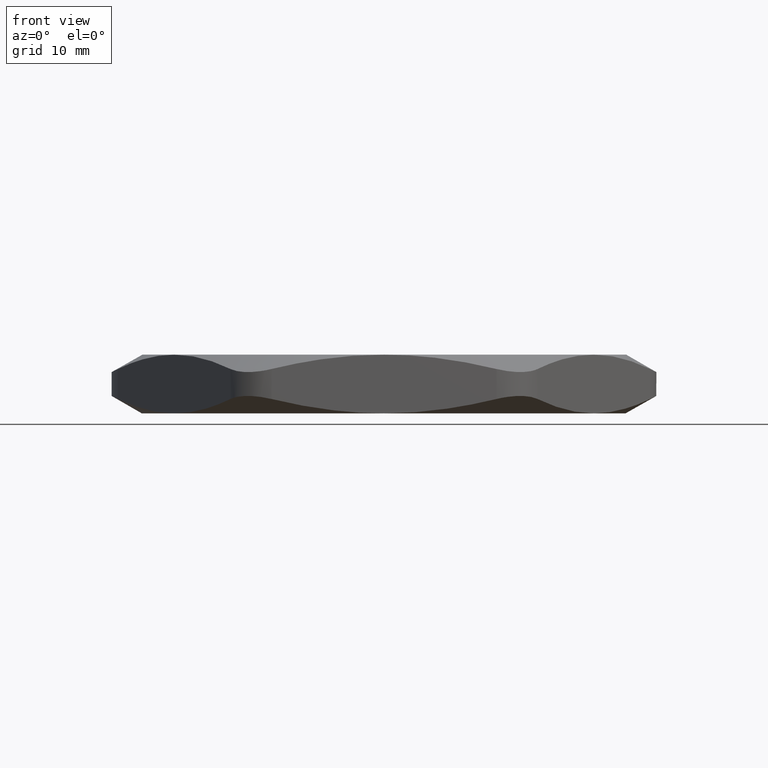
[diagram: clean part render]
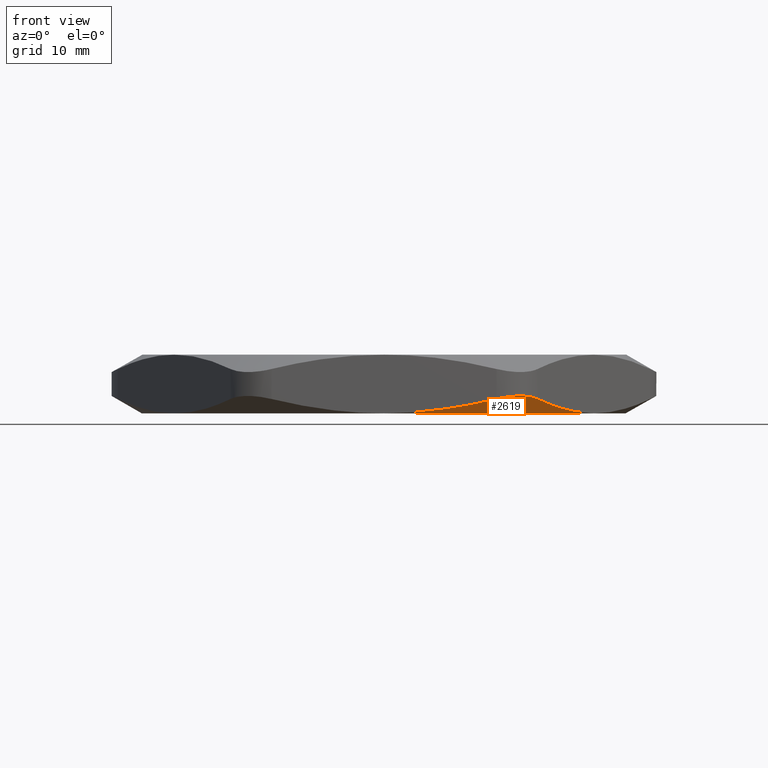
[diagram: same view with one face highlighted and labeled with its STEP entity id]
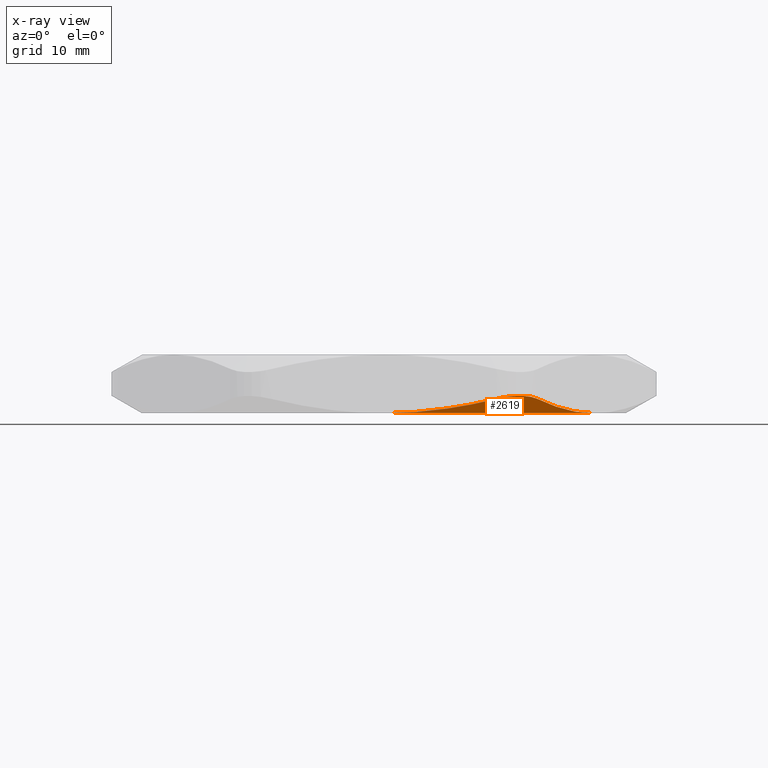
[diagram: x-ray of the same camera — body ghosted, the highlighted face saturated]
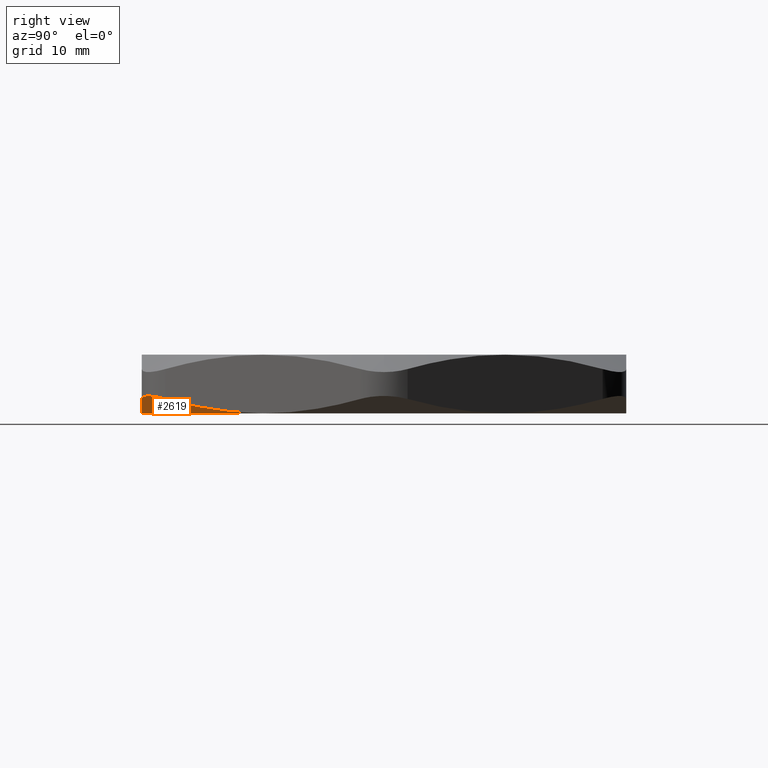
[diagram: same view with one face highlighted and labeled with its STEP entity id]
A machine part, front view. The second image highlights one B-rep face of the part: STEP entity #2619.
The next image is the same camera in x-ray: the body ghosted, the highlighted face saturated — about 0% of this face is hidden behind the body in this view.
A second angle (right view) of the same face is appended — the face is thin or edge-on in the first view.
In plain terms, the highlighted conical surface has half-angle 60 deg.
Its self-contained STEP definition (entity closure, byte-faithful):
#328 = CARTESIAN_POINT ( 'NONE',  ( 0.5946707772653144800, -1.279999999999999800, 0.07586042469470369300 ) ) ;
#366 = DIRECTION ( 'NONE',  ( -1.000000000000000000, 0.0000000000000000000, 0.0000000000000000000 ) ) ;
#367 = DIRECTION ( 'NONE',  ( 0.0000000000000000000, 0.0000000000000000000, -1.000000000000000000 ) ) ;
#368 = CARTESIAN_POINT ( 'NONE',  ( 0.0000000000000000000, 0.0000000000000000000, 0.0000000000000000000 ) ) ;
#369 = AXIS2_PLACEMENT_3D ( 'NONE', #368, #367, #366 ) ;
#374 = CIRCLE ( 'NONE', #369, 1.279999999999999800 ) ;
#397 = B_SPLINE_CURVE_WITH_KNOTS ( 'NONE', 3,
 ( #451, #450, #449, #448, #447, #446, #445, #444, #443, #442 ),
 .UNSPECIFIED., .F., .F.,
 ( 4, 2, 2, 2, 4 ),
 ( 0.01899322437989307100, 0.02088828638684811800, 0.02278334839380316600, 0.02657347240771327000, 0.03415372043553347600 ),
 .UNSPECIFIED. ) ;
#442 = CARTESIAN_POINT ( 'NONE',  ( 0.8111771282114240700, -1.154999999999999800, 0.07586042469470390100 ) ) ;
#443 = CARTESIAN_POINT ( 'NONE',  ( 0.8598356275105356600, -1.070721006993884000, 0.05218725694841351600 ) ) ;
#444 = CARTESIAN_POINT ( 'NONE',  ( 0.9088750550365841700, -0.9857822269446767600, 0.03311349661659964600 ) ) ;
#445 = CARTESIAN_POINT ( 'NONE',  ( 0.9831811724473175100, -0.8570802562761070700, 0.01352200269154271400 ) ) ;
#446 = CARTESIAN_POINT ( 'NONE',  ( 1.008074325343679200, -0.8139640506990290000, 0.008494105051138064300 ) ) ;
#447 = CARTESIAN_POINT ( 'NONE',  ( 1.045618532124231500, -0.7489355770252401600, 0.003421162097211205400 ) ) ;
#448 = CARTESIAN_POINT ( 'NONE',  ( 1.058167297624364300, -0.7272004776067422200, 0.002141065351997875000 ) ) ;
#449 = CARTESIAN_POINT ( 'NONE',  ( 1.083335101972366700, -0.6836085617610497800, 0.0004293670209238089100 ) ) ;
#450 = CARTESIAN_POINT ( 'NONE',  ( 1.095950099761045600, -0.6617587446536880000, -1.544667957355080600E-016 ) ) ;
#451 = CARTESIAN_POINT ( 'NONE',  ( 1.108512516844081500, -0.6400000000000000100, 0.0000000000000000000 ) ) ;
#484 = CARTESIAN_POINT ( 'NONE',  ( 2.365849761790801500E-016, -1.280000000000000000, 0.0000000000000000000 ) ) ;
#485 = CARTESIAN_POINT ( 'NONE',  ( 0.05001037886990379600, -1.279999999999999800, -7.509914162270411100E-017 ) ) ;
#486 = CARTESIAN_POINT ( 'NONE',  ( 0.1001624873266663800, -1.280000000000000000, 0.001697979877627757000 ) ) ;
#487 = CARTESIAN_POINT ( 'NONE',  ( 0.1756024681980051800, -1.279999999999999400, 0.006782620379827525800 ) ) ;
#488 = CARTESIAN_POINT ( 'NONE',  ( 0.2008094994245510600, -1.279999999999999800, 0.008903294908241992900 ) ) ;
#489 = CARTESIAN_POINT ( 'NONE',  ( 0.2509276229445917500, -1.280000000000000000, 0.01393159953771775500 ) ) ;
#490 = CARTESIAN_POINT ( 'NONE',  ( 0.2758819046389016600, -1.279999999999999800, 0.01684114404334761600 ) ) ;
#491 = CARTESIAN_POINT ( 'NONE',  ( 0.4001594715489946200, -1.279999999999999800, 0.03325239944499157300 ) ) ;
#492 = CARTESIAN_POINT ( 'NONE',  ( 0.4980012205278627200, -1.280000000000000200, 0.05234475255551986100 ) ) ;
#493 = CARTESIAN_POINT ( 'NONE',  ( 0.5946707772653144800, -1.279999999999999800, 0.07586042469470369300 ) ) ;
#496 = B_SPLINE_CURVE_WITH_KNOTS ( 'NONE', 3,
 ( #493, #492, #491, #490, #489, #488, #487, #486, #485, #484 ),
 .UNSPECIFIED., .F., .F.,
 ( 4, 2, 2, 2, 4 ),
 ( 0.08865235764301276900, 0.09625948038925936900, 0.09816126107582101600, 0.1000630417623826600, 0.1038666031355059600 ),
 .UNSPECIFIED. ) ;
#505 = CARTESIAN_POINT ( 'NONE',  ( 2.365849761790801500E-016, -1.280000000000000000, 0.0000000000000000000 ) ) ;
#534 = CARTESIAN_POINT ( 'NONE',  ( 1.108512516844081500, -0.6400000000000000100, 0.0000000000000000000 ) ) ;
#636 = CARTESIAN_POINT ( 'NONE',  ( 0.8111771282114240700, -1.154999999999999800, 0.07586042469470390100 ) ) ;
#970 = CARTESIAN_POINT ( 'NONE',  ( 0.5946707772653144800, -1.279999999999999800, 0.07586042469470369300 ) ) ;
#971 = CARTESIAN_POINT ( 'NONE',  ( 0.6162603030698000600, -1.280000000000000900, 0.08111225606326609400 ) ) ;
#972 = CARTESIAN_POINT ( 'NONE',  ( 0.6380932363901091800, -1.277159335061435900, 0.08517766554010051900 ) ) ;
#973 = CARTESIAN_POINT ( 'NONE',  ( 0.6696218917418427200, -1.268748072567801800, 0.08924329747529244300 ) ) ;
#974 = CARTESIAN_POINT ( 'NONE',  ( 0.6799767698733575300, -1.265254203478355200, 0.09027174263999686300 ) ) ;
#975 = CARTESIAN_POINT ( 'NONE',  ( 0.7003631279386120000, -1.256827643020491200, 0.09165484778064000900 ) ) ;
#976 = CARTESIAN_POINT ( 'NONE',  ( 0.7103484313641386100, -1.251898737729816100, 0.09200007377823467300 ) ) ;
#977 = CARTESIAN_POINT ( 'NONE',  ( 0.7293424250066878900, -1.240912106713949500, 0.09199162737741074800 ) ) ;
#978 = CARTESIAN_POINT ( 'NONE',  ( 0.7384344114442044100, -1.234822322615551200, 0.09164457365785268200 ) ) ;
#979 = CARTESIAN_POINT ( 'NONE',  ( 0.7558103521459598200, -1.221452876085044900, 0.09026396296918577600 ) ) ;
#980 = CARTESIAN_POINT ( 'NONE',  ( 0.7641552604195118700, -1.214105362201560100, 0.08921685669050813400 ) ) ;
#981 = CARTESIAN_POINT ( 'NONE',  ( 0.7873150024386630400, -1.190833143950531300, 0.08510571054412698100 ) ) ;
#982 = CARTESIAN_POINT ( 'NONE',  ( 0.8003850585843890200, -1.173692412912845000, 0.08111094574016281000 ) ) ;
#983 = CARTESIAN_POINT ( 'NONE',  ( 0.8111771282114240700, -1.154999999999999800, 0.07586042469470390100 ) ) ;
#988 = B_SPLINE_CURVE_WITH_KNOTS ( 'NONE', 3,
 ( #983, #982, #981, #980, #979, #978, #977, #976, #975, #974, #973, #972, #971, #970 ),
 .UNSPECIFIED., .F., .F.,
 ( 4, 2, 2, 2, 2, 2, 4 ),
 ( 4.982613841084487600E-018, 0.001669840121051567100, 0.002504760181577348200, 0.003339680242103136000, 0.004174600302628924200, 0.005009520363154712000, 0.006679360484206271900 ),
 .UNSPECIFIED. ) ;
#1137 = DIRECTION ( 'NONE',  ( -1.000000000000000000, 0.0000000000000000000, 0.0000000000000000000 ) ) ;
#1138 = AXIS2_PLACEMENT_3D ( 'NONE', #1153, #1156, #1137 ) ;
#1153 = CARTESIAN_POINT ( 'NONE',  ( 0.0000000000000000000, 0.0000000000000000000, 0.0000000000000000000 ) ) ;
#1154 = CONICAL_SURFACE ( 'NONE', #1138, 1.280000000000000000, 1.047197551196600100 ) ;
#1156 = DIRECTION ( 'NONE',  ( 0.0000000000000000000, 0.0000000000000000000, 1.000000000000000000 ) ) ;
#1158 = FACE_OUTER_BOUND ( 'NONE', #2620, .T. ) ;
#1985 = VERTEX_POINT ( 'NONE', #328 ) ;
#2016 = EDGE_CURVE ( 'NONE', #2053, #2047, #374, .T. ) ;
#2024 = EDGE_CURVE ( 'NONE', #2053, #2128, #397, .T. ) ;
#2046 = EDGE_CURVE ( 'NONE', #1985, #2047, #496, .T. ) ;
#2047 = VERTEX_POINT ( 'NONE', #505 ) ;
#2053 = VERTEX_POINT ( 'NONE', #534 ) ;
#2128 = VERTEX_POINT ( 'NONE', #636 ) ;
#2500 = ORIENTED_EDGE ( 'NONE', *, *, #2024, .T. ) ;
#2501 = ORIENTED_EDGE ( 'NONE', *, *, #2542, .T. ) ;
#2542 = EDGE_CURVE ( 'NONE', #2128, #1985, #988, .T. ) ;
#2609 = ORIENTED_EDGE ( 'NONE', *, *, #2046, .T. ) ;
#2612 = ORIENTED_EDGE ( 'NONE', *, *, #2016, .F. ) ;
#2619 = ADVANCED_FACE ( 'NONE', ( #1158 ), #1154, .T. ) ;
#2620 = EDGE_LOOP ( 'NONE', ( #2500, #2501, #2609, #2612 ) ) ;